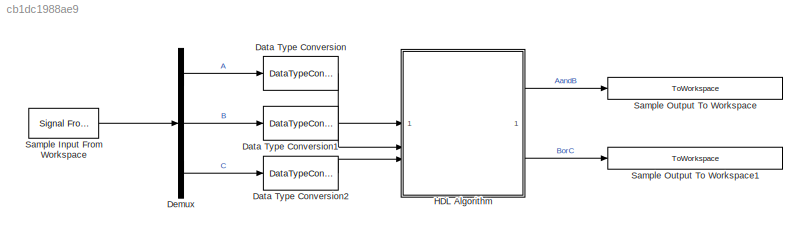
MODEL slx_cb1dc1988ae9
KIND model
CONFIG AbsTol = auto
CONFIG EnableMultiTasking = off
CONFIG FixedStep = auto
CONFIG MaxStep = auto
CONFIG MinStep = auto
CONFIG RelTol = 1e-3
CONFIG SampleTimeConstraint = Unconstrained
CONFIG SolverName = FixedStepDiscrete
CONFIG StartTime = 0.0
CONFIG StopTime = simTime
BLOCK [DataTypeConversion] Data Type Conversion
  OutDataTypeStr = boolean
  RndMeth = Floor
  SaturateOnIntegerOverflow = off
BLOCK [DataTypeConversion] Data Type Conversion1
  OutDataTypeStr = boolean
  RndMeth = Floor
  SaturateOnIntegerOverflow = off
BLOCK [DataTypeConversion] Data Type Conversion2
  OutDataTypeStr = boolean
  RndMeth = Floor
  SaturateOnIntegerOverflow = off
BLOCK [Demux] Demux
  Outputs = 3
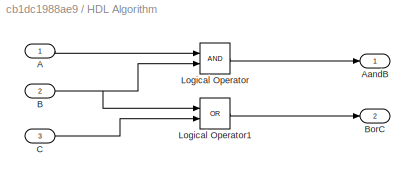
BLOCK [SubSystem] HDL Algorithm
BLOCK [Inport] HDL Algorithm/A
BLOCK [Outport] HDL Algorithm/AandB
  VectorParamsAs1DForOutWhenUnconnected = off
BLOCK [Inport] HDL Algorithm/B
  Port = 2
BLOCK [Outport] HDL Algorithm/BorC
  Port = 2
  VectorParamsAs1DForOutWhenUnconnected = off
BLOCK [Inport] HDL Algorithm/C
  Port = 3
BLOCK [Logic] HDL Algorithm/Logical Operator
  AllPortsSameDT = off
  OutDataTypeStr = boolean
BLOCK [Logic] HDL Algorithm/Logical Operator1
  AllPortsSameDT = off
  Operator = OR
  OutDataTypeStr = boolean
BLOCK [Reference] Sample Input From Workspace  REF=dspsrcs4/Signal From
Workspace
  SourceBlock = dspsrcs4/Signal From\nWorkspace
  SourceType = Signal From Workspace
BLOCK [ToWorkspace] Sample Output To Workspace
  FixptAsFi = on
  MaxDataPoints = inf
  SampleTime = -1
  SaveFormat = Timeseries
  VariableName = AandB
BLOCK [ToWorkspace] Sample Output To Workspace1
  FixptAsFi = on
  MaxDataPoints = inf
  SampleTime = -1
  SaveFormat = Timeseries
  VariableName = BorC
LINE Data Type Conversion1:1 -> HDL Algorithm:2
LINE Data Type Conversion2:1 -> HDL Algorithm:3
LINE Data Type Conversion:1 -> HDL Algorithm:1
LINE Demux:1 -> Data Type Conversion:1
LINE Demux:2 -> Data Type Conversion1:1
LINE Demux:3 -> Data Type Conversion2:1
LINE HDL Algorithm/A:1 -> HDL Algorithm/Logical Operator:1
NET HDL Algorithm/B:1 -> HDL Algorithm/Logical Operator1:1, HDL Algorithm/Logical Operator:2
LINE HDL Algorithm/C:1 -> HDL Algorithm/Logical Operator1:2
LINE HDL Algorithm/Logical Operator1:1 -> HDL Algorithm/BorC:1
LINE HDL Algorithm/Logical Operator:1 -> HDL Algorithm/AandB:1
LINE HDL Algorithm:1 -> Sample Output To Workspace:1
LINE HDL Algorithm:2 -> Sample Output To Workspace1:1
LINE Sample Input From Workspace:1 -> Demux:1
note: NET lines group one-source signal fan-out (src -> all destinations, sorted); 1:1 wires keep LINE
